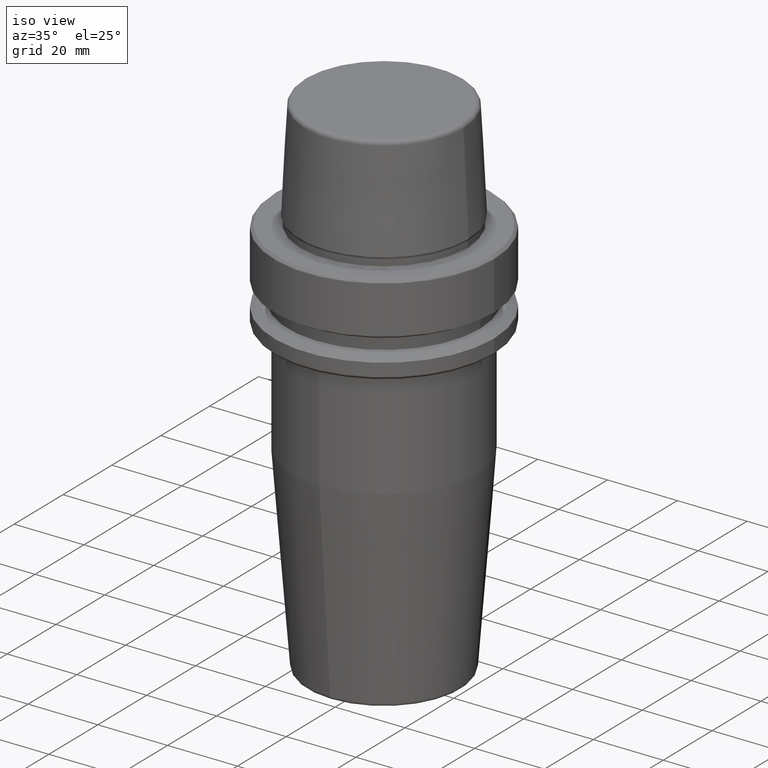
[diagram: clean part render]
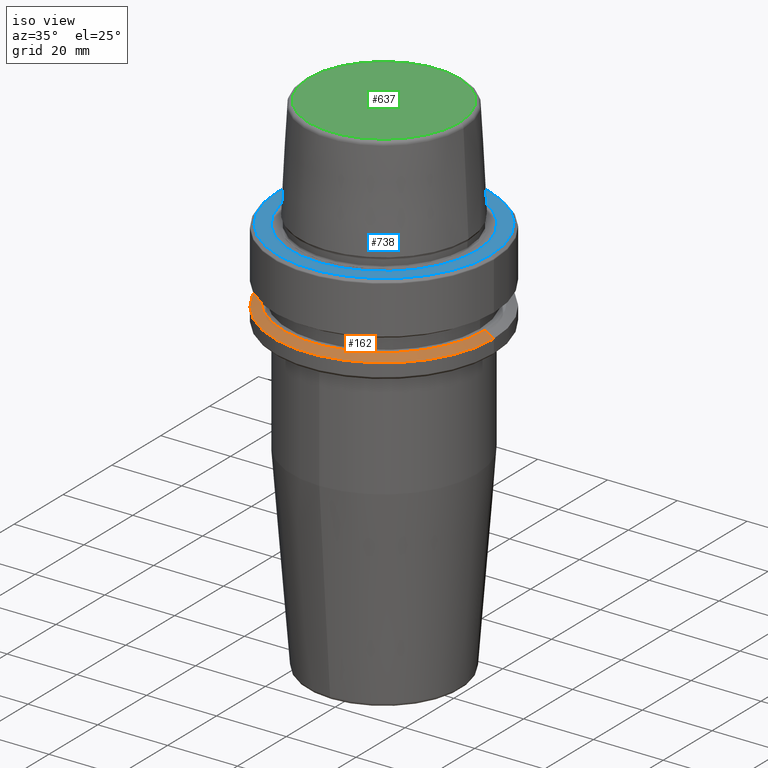
[diagram: same view with three faces highlighted in distinct colors, each labeled with its STEP entity id]
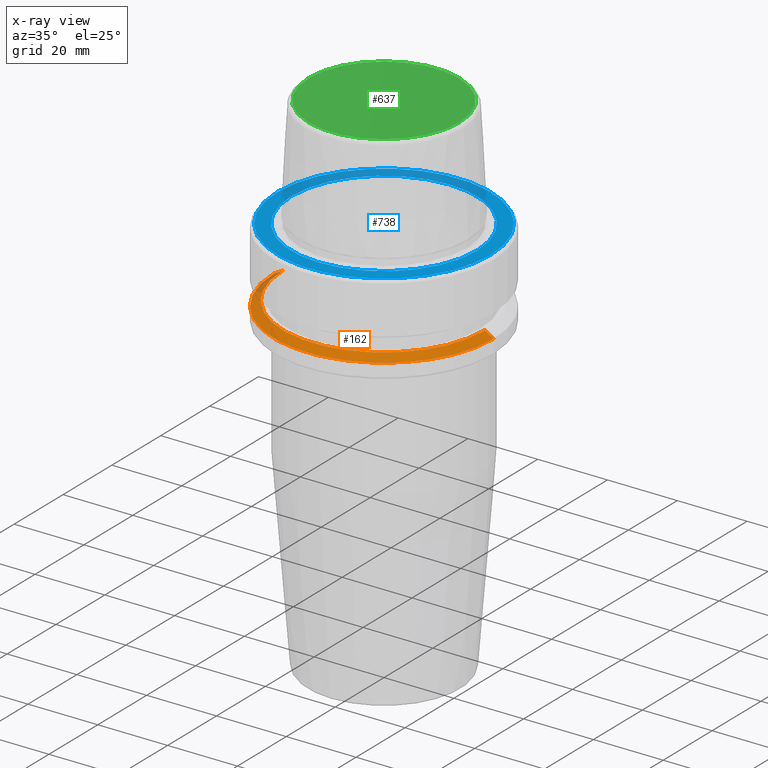
[diagram: x-ray of the same camera — body ghosted, the three highlighted faces saturated]
A machine part, iso view with three faces highlighted in distinct colors.
The next image is the same camera in x-ray (body ghosted, the three faces saturated) — at least one of them is partly hidden behind the body in this view.
Their STEP definitions:

[orange] entity #162 — the highlighted conical surface has half-angle 60 deg.
#53 = EDGE_LOOP ( 'NONE', ( #849, #932, #385, #357 ) ) ;
#59 = VERTEX_POINT ( 'NONE', #1242 ) ;
#115 = CARTESIAN_POINT ( 'NONE',  ( 28.94089653438085100, 3.700937523921292900E-015, -19.90000000000001600 ) ) ;
#128 = DIRECTION ( 'NONE',  ( 1.000000000000000000, 0.0000000000000000000, 0.0000000000000000000 ) ) ;
#154 = CARTESIAN_POINT ( 'NONE',  ( 0.0000000000000000000, 0.0000000000000000000, -21.37749907475931700 ) ) ;
#162 = ADVANCED_FACE ( 'NONE', ( #840 ), #263, .T. ) ;
#225 = LINE ( 'NONE', #991, #970 ) ;
#263 = CONICAL_SURFACE ( 'NONE', #354, 31.50000000000000000, 1.047197551196602500 ) ;
#354 = AXIS2_PLACEMENT_3D ( 'NONE', #1210, #810, #520 ) ;
#357 = ORIENTED_EDGE ( 'NONE', *, *, #942, .T. ) ;
#385 = ORIENTED_EDGE ( 'NONE', *, *, #818, .T. ) ;
#520 = DIRECTION ( 'NONE',  ( -1.000000000000000000, 0.0000000000000000000, 0.0000000000000000000 ) ) ;
#538 = CARTESIAN_POINT ( 'NONE',  ( 31.50000000000000000, 0.0000000000000000000, -21.37749907475931700 ) ) ;
#546 = DIRECTION ( 'NONE',  ( 0.8660254037844410400, 1.060575238724909700E-016, -0.4999999999999958400 ) ) ;
#569 = CARTESIAN_POINT ( 'NONE',  ( -28.94089653438085100, 0.0000000000000000000, -19.90000000000001600 ) ) ;
#585 = DIRECTION ( 'NONE',  ( -0.0000000000000000000, -0.0000000000000000000, 1.000000000000000000 ) ) ;
#608 = VERTEX_POINT ( 'NONE', #569 ) ;
#644 = CARTESIAN_POINT ( 'NONE',  ( 31.50000000000000000, 3.857637417314162700E-015, -21.37749907475931700 ) ) ;
#708 = EDGE_CURVE ( 'NONE', #733, #950, #1092, .T. ) ;
#731 = DIRECTION ( 'NONE',  ( -0.0000000000000000000, -0.0000000000000000000, 1.000000000000000000 ) ) ;
#733 = VERTEX_POINT ( 'NONE', #115 ) ;
#810 = DIRECTION ( 'NONE',  ( 0.0000000000000000000, 0.0000000000000000000, -1.000000000000000000 ) ) ;
#818 = EDGE_CURVE ( 'NONE', #608, #59, #225, .T. ) ;
#832 = VECTOR ( 'NONE', #546, 1000.000000000000100 ) ;
#834 = DIRECTION ( 'NONE',  ( 1.000000000000000000, 0.0000000000000000000, 0.0000000000000000000 ) ) ;
#840 = FACE_OUTER_BOUND ( 'NONE', #53, .T. ) ;
#848 = CIRCLE ( 'NONE', #1108, 31.50000000000000000 ) ;
#849 = ORIENTED_EDGE ( 'NONE', *, *, #708, .F. ) ;
#864 = EDGE_CURVE ( 'NONE', #608, #733, #1198, .T. ) ;
#932 = ORIENTED_EDGE ( 'NONE', *, *, #864, .F. ) ;
#942 = EDGE_CURVE ( 'NONE', #59, #950, #848, .T. ) ;
#950 = VERTEX_POINT ( 'NONE', #538 ) ;
#970 = VECTOR ( 'NONE', #1200, 1000.000000000000100 ) ;
#991 = CARTESIAN_POINT ( 'NONE',  ( -31.50000000000000000, 0.0000000000000000000, -21.37749907475931700 ) ) ;
#1092 = LINE ( 'NONE', #644, #832 ) ;
#1108 = AXIS2_PLACEMENT_3D ( 'NONE', #154, #731, #834 ) ;
#1150 = AXIS2_PLACEMENT_3D ( 'NONE', #1167, #585, #128 ) ;
#1167 = CARTESIAN_POINT ( 'NONE',  ( 0.0000000000000000000, 0.0000000000000000000, -19.90000000000001600 ) ) ;
#1198 = CIRCLE ( 'NONE', #1150, 28.94089653438085100 ) ;
#1200 = DIRECTION ( 'NONE',  ( -0.8660254037844410400, 0.0000000000000000000, -0.4999999999999958400 ) ) ;
#1210 = CARTESIAN_POINT ( 'NONE',  ( 0.0000000000000000000, 0.0000000000000000000, -21.37749907475931700 ) ) ;
#1242 = CARTESIAN_POINT ( 'NONE',  ( -31.50000000000000000, 3.857637417314162700E-015, -21.37749907475931700 ) ) ;

[blue] entity #738 — the highlighted planar face has unit normal (0, 0, -1).
#14 = ORIENTED_EDGE ( 'NONE', *, *, #1212, .F. ) ;
#27 = DIRECTION ( 'NONE',  ( 1.000000000000000000, 0.0000000000000000000, 0.0000000000000000000 ) ) ;
#44 = EDGE_CURVE ( 'NONE', #1185, #1001, #65, .T. ) ;
#45 = EDGE_LOOP ( 'NONE', ( #14, #335 ) ) ;
#56 = FACE_BOUND ( 'NONE', #45, .T. ) ;
#65 = CIRCLE ( 'NONE', #967, 26.52499999999999900 ) ;
#91 = ORIENTED_EDGE ( 'NONE', *, *, #789, .T. ) ;
#117 = ORIENTED_EDGE ( 'NONE', *, *, #1009, .T. ) ;
#135 = DIRECTION ( 'NONE',  ( -0.0000000000000000000, -0.0000000000000000000, 1.000000000000000000 ) ) ;
#185 = DIRECTION ( 'NONE',  ( 1.000000000000000000, 0.0000000000000000000, 0.0000000000000000000 ) ) ;
#200 = DIRECTION ( 'NONE',  ( 1.000000000000000000, 0.0000000000000000000, 0.0000000000000000000 ) ) ;
#224 = DIRECTION ( 'NONE',  ( -1.000000000000000000, 0.0000000000000000000, -0.0000000000000000000 ) ) ;
#240 = AXIS2_PLACEMENT_3D ( 'NONE', #341, #928, #246 ) ;
#246 = DIRECTION ( 'NONE',  ( 1.000000000000000000, 0.0000000000000000000, 0.0000000000000000000 ) ) ;
#250 = VERTEX_POINT ( 'NONE', #1033 ) ;
#303 = CARTESIAN_POINT ( 'NONE',  ( 0.0000000000000000000, 0.0000000000000000000, 0.0000000000000000000 ) ) ;
#313 = AXIS2_PLACEMENT_3D ( 'NONE', #766, #1065, #224 ) ;
#335 = ORIENTED_EDGE ( 'NONE', *, *, #44, .F. ) ;
#341 = CARTESIAN_POINT ( 'NONE',  ( 0.0000000000000000000, 0.0000000000000000000, 0.0000000000000000000 ) ) ;
#359 = CIRCLE ( 'NONE', #240, 30.53431457505076100 ) ;
#390 = CARTESIAN_POINT ( 'NONE',  ( 0.0000000000000000000, 0.0000000000000000000, 0.0000000000000000000 ) ) ;
#391 = CARTESIAN_POINT ( 'NONE',  ( 0.0000000000000000000, 0.0000000000000000000, 0.0000000000000000000 ) ) ;
#437 = CARTESIAN_POINT ( 'NONE',  ( 30.53431457505076100, 0.0000000000000000000, 0.0000000000000000000 ) ) ;
#454 = PLANE ( 'NONE',  #313 ) ;
#710 = EDGE_LOOP ( 'NONE', ( #117, #91 ) ) ;
#738 = ADVANCED_FACE ( 'NONE', ( #56, #802 ), #454, .F. ) ;
#761 = AXIS2_PLACEMENT_3D ( 'NONE', #303, #1085, #185 ) ;
#766 = CARTESIAN_POINT ( 'NONE',  ( 0.0000000000000000000, 26.52499999999999900, -1.111307226797642000E-015 ) ) ;
#789 = EDGE_CURVE ( 'NONE', #250, #1026, #1028, .T. ) ;
#791 = CIRCLE ( 'NONE', #1217, 26.52499999999999900 ) ;
#802 = FACE_OUTER_BOUND ( 'NONE', #710, .T. ) ;
#883 = DIRECTION ( 'NONE',  ( -0.0000000000000000000, -0.0000000000000000000, 1.000000000000000000 ) ) ;
#928 = DIRECTION ( 'NONE',  ( -0.0000000000000000000, -0.0000000000000000000, 1.000000000000000000 ) ) ;
#967 = AXIS2_PLACEMENT_3D ( 'NONE', #390, #135, #27 ) ;
#1001 = VERTEX_POINT ( 'NONE', #1025 ) ;
#1009 = EDGE_CURVE ( 'NONE', #1026, #250, #359, .T. ) ;
#1025 = CARTESIAN_POINT ( 'NONE',  ( 26.52499999999999900, 0.0000000000000000000, 0.0000000000000000000 ) ) ;
#1026 = VERTEX_POINT ( 'NONE', #437 ) ;
#1028 = CIRCLE ( 'NONE', #761, 30.53431457505076100 ) ;
#1033 = CARTESIAN_POINT ( 'NONE',  ( -30.53431457505076100, 3.756694181974138600E-015, 0.0000000000000000000 ) ) ;
#1065 = DIRECTION ( 'NONE',  ( 0.0000000000000000000, 0.0000000000000000000, -1.000000000000000000 ) ) ;
#1085 = DIRECTION ( 'NONE',  ( -0.0000000000000000000, -0.0000000000000000000, 1.000000000000000000 ) ) ;
#1178 = CARTESIAN_POINT ( 'NONE',  ( -26.52499999999999900, 3.248375634738354300E-015, 0.0000000000000000000 ) ) ;
#1185 = VERTEX_POINT ( 'NONE', #1178 ) ;
#1212 = EDGE_CURVE ( 'NONE', #1001, #1185, #791, .T. ) ;
#1217 = AXIS2_PLACEMENT_3D ( 'NONE', #391, #883, #200 ) ;

[green] entity #637 — the highlighted planar face has unit normal (0, 0, -1).
#232 = CARTESIAN_POINT ( 'NONE',  ( 0.0000000000000000000, 0.0000000000000000000, 31.89999999999999900 ) ) ;
#262 = DIRECTION ( 'NONE',  ( 1.000000000000000000, 0.0000000000000000000, 0.0000000000000000000 ) ) ;
#340 = EDGE_CURVE ( 'NONE', #860, #533, #1175, .T. ) ;
#378 = CARTESIAN_POINT ( 'NONE',  ( 0.0000000000000000000, 0.0000000000000000000, 31.89999999999999900 ) ) ;
#443 = CARTESIAN_POINT ( 'NONE',  ( 0.0000000000000000000, 0.0000000000000000000, 31.89999999999999900 ) ) ;
#449 = AXIS2_PLACEMENT_3D ( 'NONE', #378, #451, #262 ) ;
#451 = DIRECTION ( 'NONE',  ( -0.0000000000000000000, -0.0000000000000000000, 1.000000000000000000 ) ) ;
#525 = ORIENTED_EDGE ( 'NONE', *, *, #811, .T. ) ;
#533 = VERTEX_POINT ( 'NONE', #652 ) ;
#630 = CARTESIAN_POINT ( 'NONE',  ( -21.58108272732117100, 2.716307157494421400E-015, 31.89999999999999900 ) ) ;
#637 = ADVANCED_FACE ( 'NONE', ( #1186 ), #1004, .F. ) ;
#642 = ORIENTED_EDGE ( 'NONE', *, *, #340, .T. ) ;
#652 = CARTESIAN_POINT ( 'NONE',  ( 21.58108272732117100, 0.0000000000000000000, 31.89999999999999900 ) ) ;
#678 = EDGE_LOOP ( 'NONE', ( #525, #642 ) ) ;
#717 = AXIS2_PLACEMENT_3D ( 'NONE', #232, #796, #1180 ) ;
#796 = DIRECTION ( 'NONE',  ( 0.0000000000000000000, 0.0000000000000000000, -1.000000000000000000 ) ) ;
#811 = EDGE_CURVE ( 'NONE', #533, #860, #1005, .T. ) ;
#860 = VERTEX_POINT ( 'NONE', #630 ) ;
#902 = AXIS2_PLACEMENT_3D ( 'NONE', #443, #979, #1057 ) ;
#979 = DIRECTION ( 'NONE',  ( -0.0000000000000000000, -0.0000000000000000000, 1.000000000000000000 ) ) ;
#1004 = PLANE ( 'NONE',  #717 ) ;
#1005 = CIRCLE ( 'NONE', #902, 21.58108272732117100 ) ;
#1057 = DIRECTION ( 'NONE',  ( 1.000000000000000000, 0.0000000000000000000, 0.0000000000000000000 ) ) ;
#1175 = CIRCLE ( 'NONE', #449, 21.58108272732117100 ) ;
#1180 = DIRECTION ( 'NONE',  ( -1.000000000000000000, 0.0000000000000000000, -0.0000000000000000000 ) ) ;
#1186 = FACE_OUTER_BOUND ( 'NONE', #678, .T. ) ;